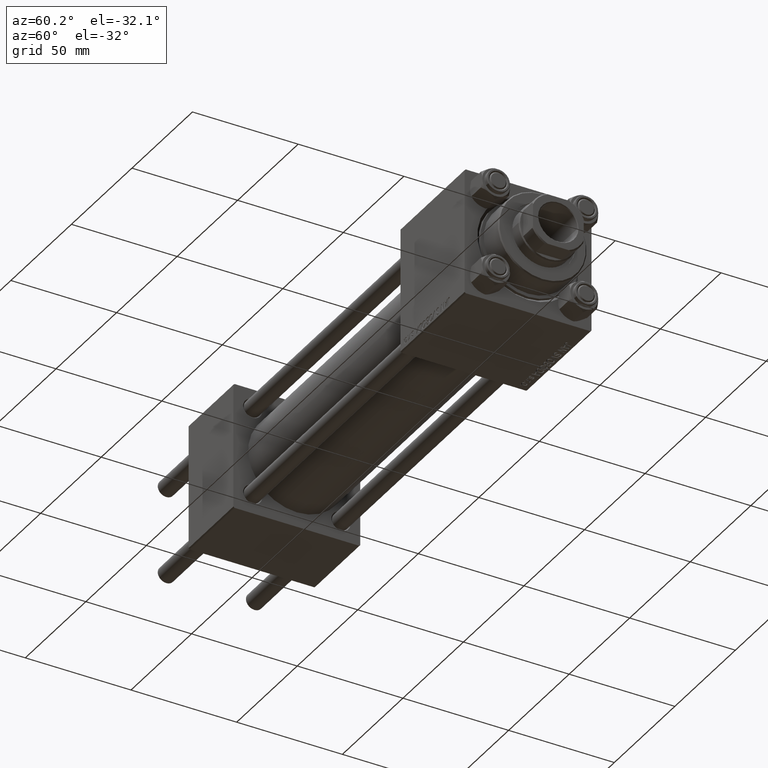
[diagram: clean part render]
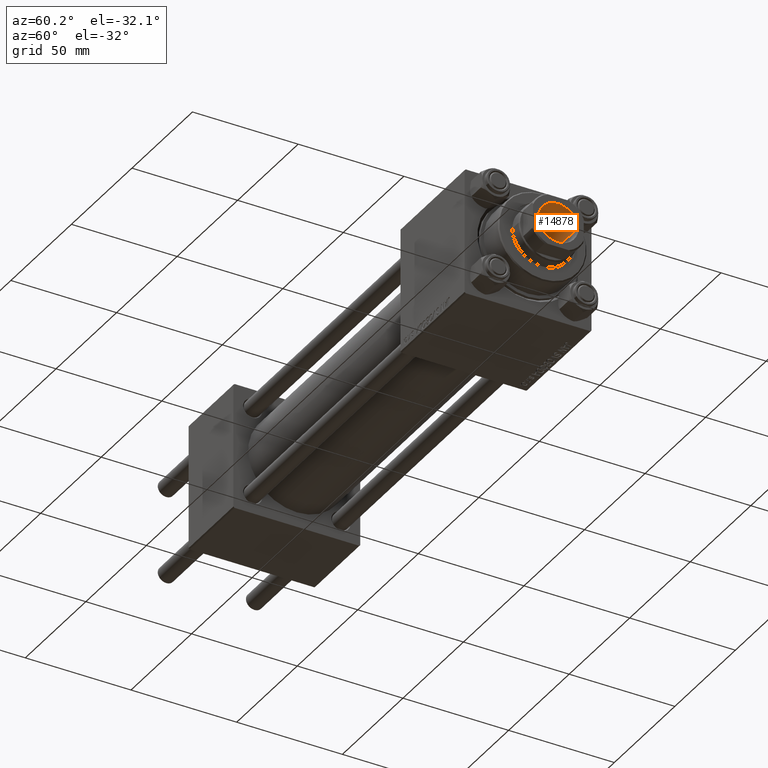
[diagram: same view with one face highlighted and labeled with its STEP entity id]
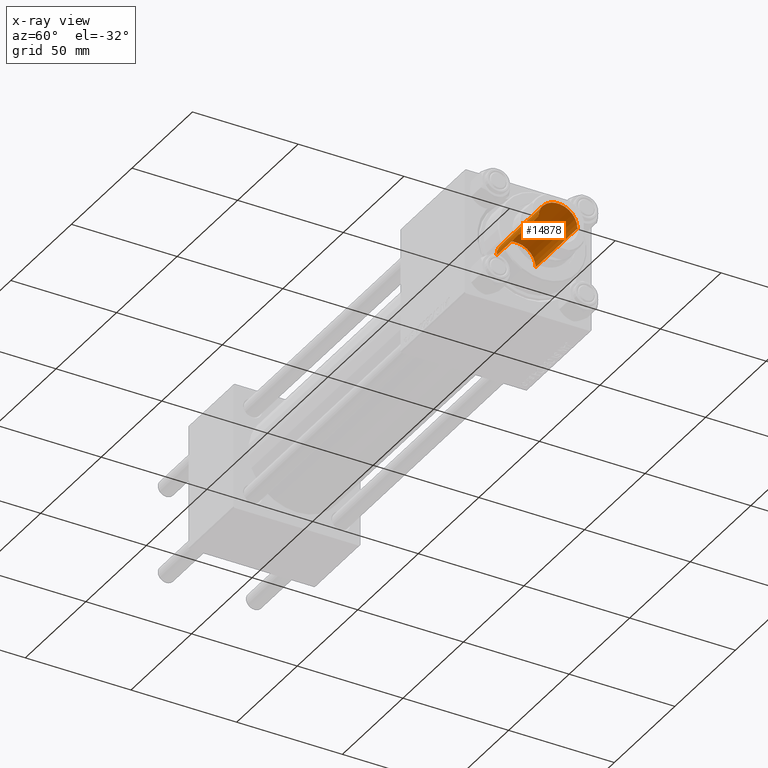
[diagram: x-ray of the same camera — body ghosted, the highlighted face saturated]
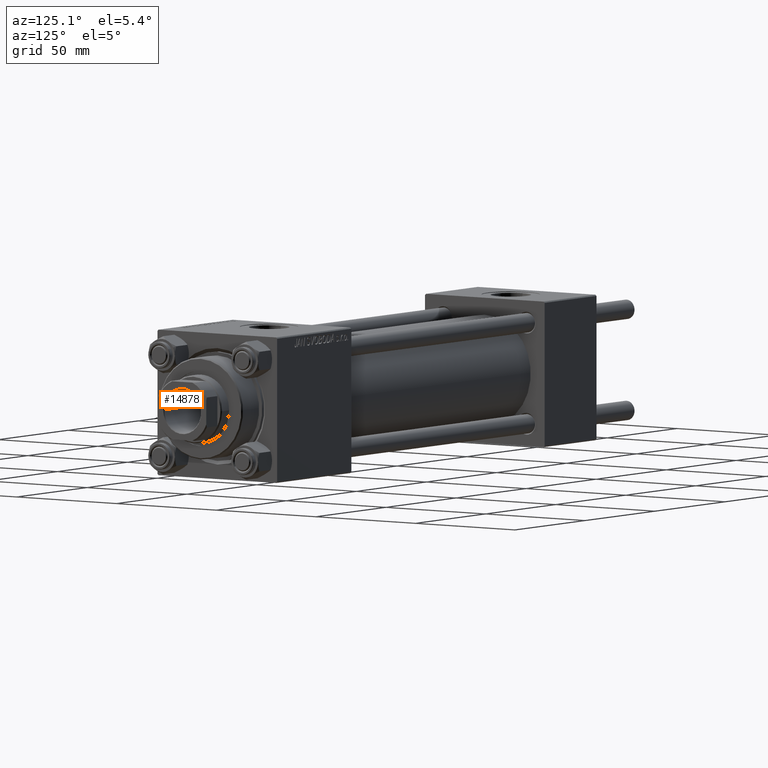
[diagram: same view with one face highlighted and labeled with its STEP entity id]
A machine part, auxiliary view. The second image highlights one B-rep face of the part: STEP entity #14878.
The next image is the same camera in x-ray: the body ghosted, the highlighted face saturated — about 0% of this face is hidden behind the body in this view.
A second angle (auxiliary view) of the same face is appended — the face is thin or edge-on in the first view.
In plain terms, the highlighted cylindrical surface (edge-blend (fillet) strip) has radius 9.25 mm, axis along (1, 0, -0).
Its self-contained STEP definition (entity closure, byte-faithful):
#1904 = CARTESIAN_POINT ( 'NONE',  ( 0.000000000000000000, 0.000000000000000000, 215.6999999999999886 ) ) ;
#2522 = EDGE_LOOP ( 'NONE', ( #34510, #22722, #14816, #32113 ) ) ;
#5170 = CARTESIAN_POINT ( 'NONE',  ( -9.249999999999994671, 1.132798289211300909E-15, 215.6999999999999886 ) ) ;
#5678 = DIRECTION ( 'NONE',  ( -0.000000000000000000, -0.000000000000000000, 1.000000000000000000 ) ) ;
#5762 = DIRECTION ( 'NONE',  ( -0.000000000000000000, -0.000000000000000000, 1.000000000000000000 ) ) ;
#6137 = AXIS2_PLACEMENT_3D ( 'NONE', #42329, #7264, #38053 ) ;
#7264 = DIRECTION ( 'NONE',  ( -0.000000000000000000, -0.000000000000000000, 1.000000000000000000 ) ) ;
#7912 = VERTEX_POINT ( 'NONE', #32084 ) ;
#8330 = CARTESIAN_POINT ( 'NONE',  ( 9.249999999999994671, 0.000000000000000000, 215.6999999999999886 ) ) ;
#8968 = CARTESIAN_POINT ( 'NONE',  ( 9.249999999999994671, 0.000000000000000000, 216.0000000000000284 ) ) ;
#9350 = EDGE_CURVE ( 'NONE', #14037, #45515, #17280, .T. ) ;
#9700 = DIRECTION ( 'NONE',  ( -0.000000000000000000, -0.000000000000000000, 1.000000000000000000 ) ) ;
#13236 = AXIS2_PLACEMENT_3D ( 'NONE', #1904, #44539, #33185 ) ;
#13973 = CYLINDRICAL_SURFACE ( 'NONE', #29659, 9.249999999999994671 ) ;
#14037 = VERTEX_POINT ( 'NONE', #15807 ) ;
#14816 = ORIENTED_EDGE ( 'NONE', *, *, #39418, .T. ) ;
#14878 = ADVANCED_FACE ( 'NONE', ( #41221 ), #13973, .F. ) ;
#15001 = CIRCLE ( 'NONE', #6137, 9.249999999999992895 ) ;
#15807 = CARTESIAN_POINT ( 'NONE',  ( 9.249999999999992895, 0.000000000000000000, 181.0000000000000284 ) ) ;
#16002 = VECTOR ( 'NONE', #5762, 1000.000000000000000 ) ;
#17280 = LINE ( 'NONE', #8968, #38334 ) ;
#19757 = EDGE_CURVE ( 'NONE', #7912, #24736, #24945, .T. ) ;
#21042 = DIRECTION ( 'NONE',  ( 1.000000000000000000, 0.000000000000000000, 0.000000000000000000 ) ) ;
#22722 = ORIENTED_EDGE ( 'NONE', *, *, #19757, .T. ) ;
#24736 = VERTEX_POINT ( 'NONE', #5170 ) ;
#24945 = LINE ( 'NONE', #40345, #16002 ) ;
#29659 = AXIS2_PLACEMENT_3D ( 'NONE', #40237, #9700, #21042 ) ;
#32084 = CARTESIAN_POINT ( 'NONE',  ( -9.249999999999992895, 1.132798289211300712E-15, 181.0000000000000284 ) ) ;
#32113 = ORIENTED_EDGE ( 'NONE', *, *, #9350, .F. ) ;
#33185 = DIRECTION ( 'NONE',  ( 1.000000000000000000, 0.000000000000000000, 0.000000000000000000 ) ) ;
#34510 = ORIENTED_EDGE ( 'NONE', *, *, #44054, .F. ) ;
#38053 = DIRECTION ( 'NONE',  ( 1.000000000000000000, 0.000000000000000000, 0.000000000000000000 ) ) ;
#38334 = VECTOR ( 'NONE', #5678, 1000.000000000000000 ) ;
#39418 = EDGE_CURVE ( 'NONE', #24736, #45515, #48705, .T. ) ;
#40237 = CARTESIAN_POINT ( 'NONE',  ( 0.000000000000000000, 0.000000000000000000, 216.0000000000000284 ) ) ;
#40345 = CARTESIAN_POINT ( 'NONE',  ( -9.249999999999994671, 1.132798289211300909E-15, 216.0000000000000284 ) ) ;
#41221 = FACE_OUTER_BOUND ( 'NONE', #2522, .T. ) ;
#42329 = CARTESIAN_POINT ( 'NONE',  ( 0.000000000000000000, 0.000000000000000000, 181.0000000000000284 ) ) ;
#44054 = EDGE_CURVE ( 'NONE', #7912, #14037, #15001, .T. ) ;
#44539 = DIRECTION ( 'NONE',  ( 0.000000000000000000, 0.000000000000000000, 1.000000000000000000 ) ) ;
#45515 = VERTEX_POINT ( 'NONE', #8330 ) ;
#48705 = CIRCLE ( 'NONE', #13236, 9.249999999999994671 ) ;